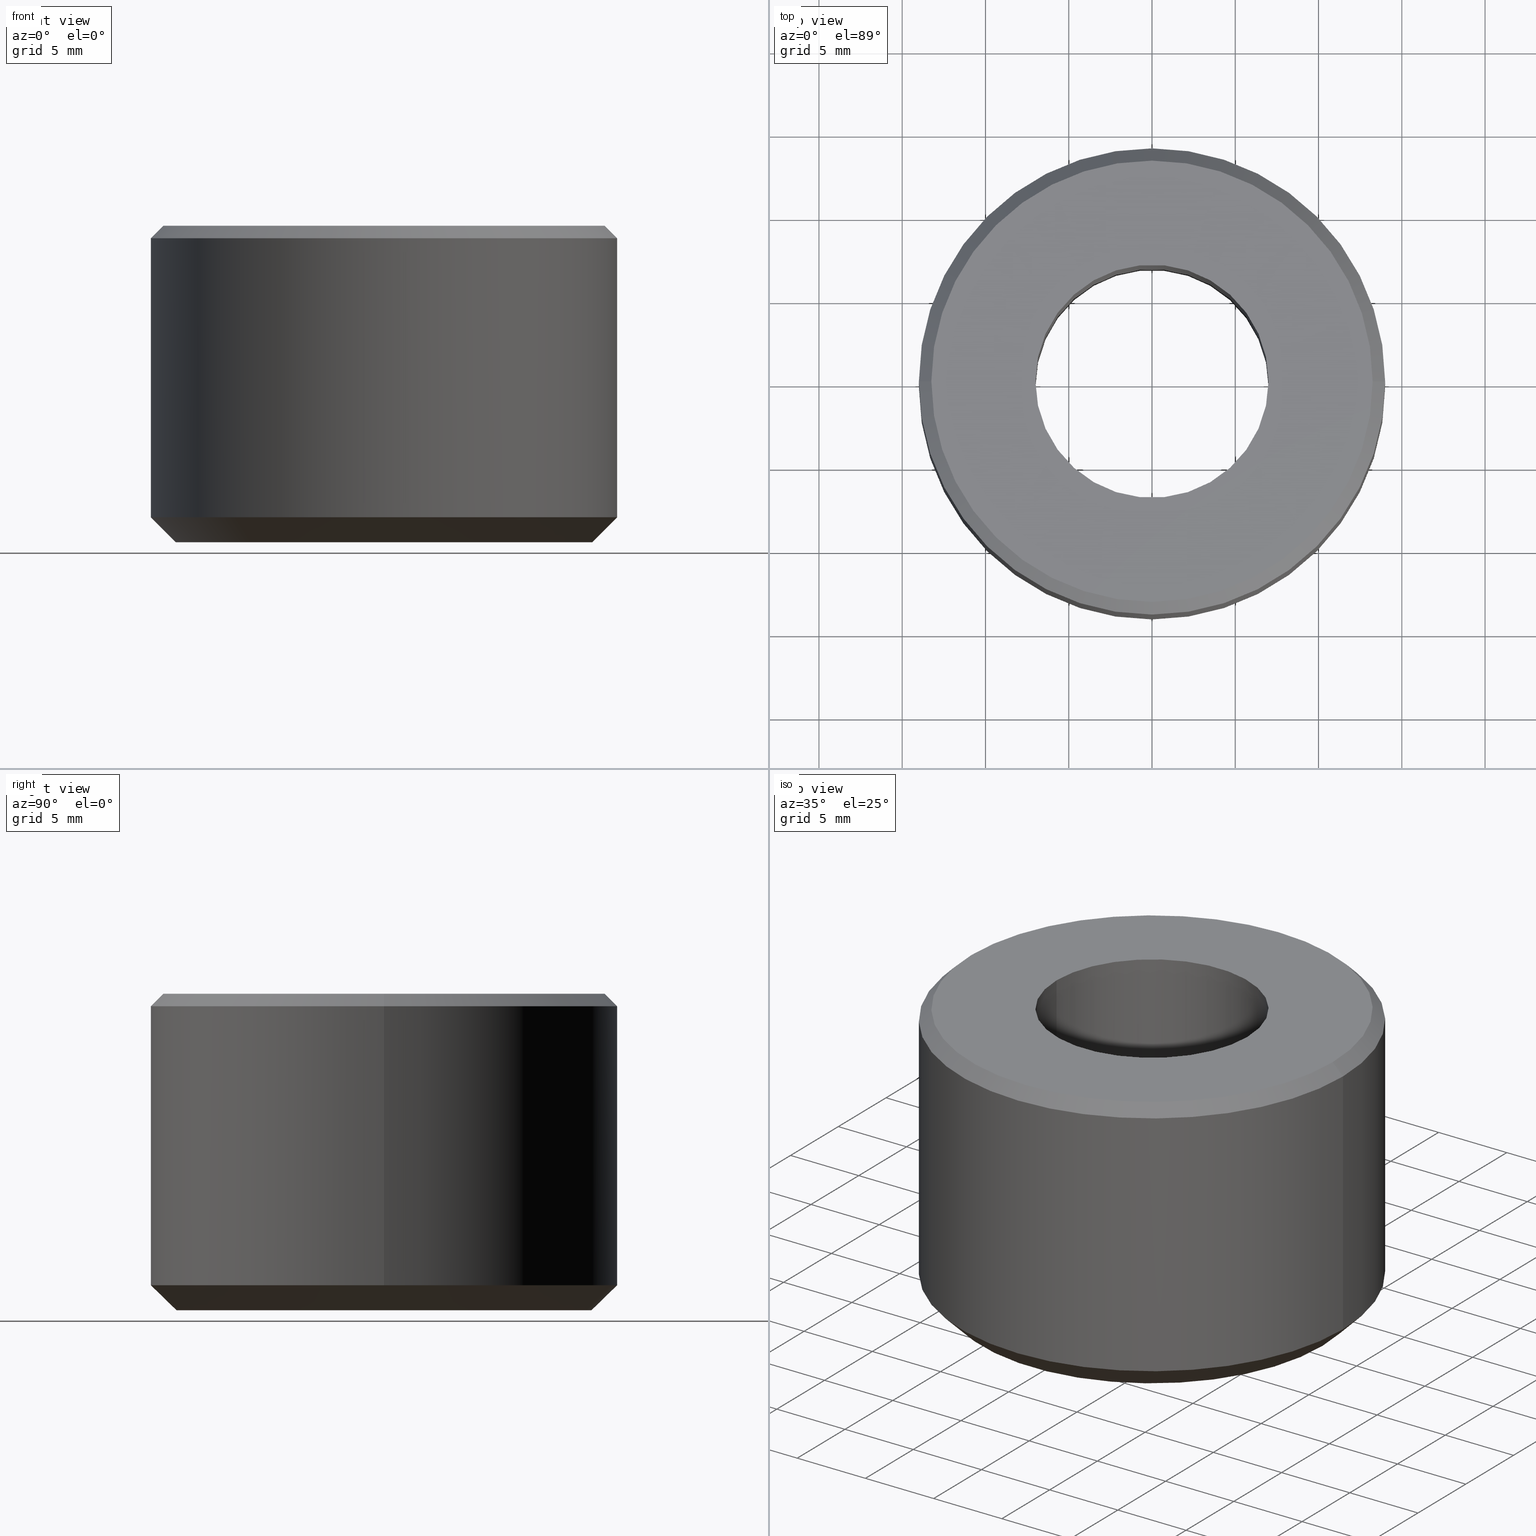
[diagram: canonical four-view strip — front | top / right | iso, engineering-drawing reading convention]
A machine part, canonical four-view strip (front | top / right | iso — engineering-drawing reading convention). The complete STEP part file that produces these views, byte-faithful:
ISO-10303-21;
HEADER;
FILE_DESCRIPTION (( 'STEP AP203' ),
    '1' );
FILE_NAME ('UM ER 20 M.STEP',
    '2019-04-22T09:02:33',
    ( '' ),
    ( '' ),
    'SwSTEP 2.0',
    'SolidWorks 2014',
    '' );
FILE_SCHEMA (( 'CONFIG_CONTROL_DESIGN' ));
ENDSEC;

DATA;
#1 = CONICAL_SURFACE ( 'NONE', #159, 14.00000000000012400, 0.7853981633974853600 ) ;
#2 = CIRCLE ( 'NONE', #233, 7.000000000000000000 ) ;
#3 = DIRECTION ( 'NONE',  ( -0.0000000000000000000, -0.0000000000000000000, 1.000000000000000000 ) ) ;
#4 = EDGE_CURVE ( 'NONE', #203, #327, #95, .T. ) ;
#5 = VECTOR ( 'NONE', #94, 1000.000000000000000 ) ;
#6 = AXIS2_PLACEMENT_3D ( 'NONE', #210, #334, #61 ) ;
#7 = AXIS2_PLACEMENT_3D ( 'NONE', #55, #331, #99 ) ;
#8 = EDGE_LOOP ( 'NONE', ( #77, #211 ) ) ;
#9 = EDGE_CURVE ( 'NONE', #118, #327, #121, .T. ) ;
#10 = CARTESIAN_POINT ( 'NONE',  ( -12.49999999999984400, 1.622657008870240900E-015, 2.220446049250313100E-013 ) ) ;
#11 = PRODUCT_DEFINITION ( 'UNKNOWN', '', #150, #70 ) ;
#12 = EDGE_LOOP ( 'NONE', ( #344, #71 ) ) ;
#13 = DIRECTION ( 'NONE',  ( 1.000000000000000000, 0.0000000000000000000, 0.0000000000000000000 ) ) ;
#14 = APPROVAL_DATE_TIME ( #79, #21 ) ;
#15 = CC_DESIGN_APPROVAL ( #249, ( #150 ) ) ;
#16 = APPLICATION_CONTEXT ( 'configuration controlled 3d designs of mechanical parts and assemblies' ) ;
#17 = DIRECTION ( 'NONE',  ( 1.000000000000000000, 0.0000000000000000000, 0.0000000000000000000 ) ) ;
#18 = ADVANCED_FACE ( 'NONE', ( #126 ), #296, .F. ) ;
#19 = EDGE_CURVE ( 'NONE', #275, #164, #284, .T. ) ;
#20 = ORIENTED_EDGE ( 'NONE', *, *, #4, .T. ) ;
#21 = APPROVAL ( #50, 'UNSPECIFIED' ) ;
#22 = APPROVAL_PERSON_ORGANIZATION ( #85, #21, #23 ) ;
#23 = APPROVAL_ROLE ( '' ) ;
#24 = APPLICATION_PROTOCOL_DEFINITION ( 'international standard', 'config_control_design', 1994, #173 ) ;
#25 = AXIS2_PLACEMENT_3D ( 'NONE', #328, #269, #206 ) ;
#26 = CARTESIAN_POINT ( 'NONE',  ( 12.49999999999984400, 0.0000000000000000000, 2.220446049250313100E-013 ) ) ;
#27 = DIRECTION ( 'NONE',  ( -0.0000000000000000000, -0.0000000000000000000, 1.000000000000000000 ) ) ;
#28 = EDGE_CURVE ( 'NONE', #256, #136, #154, .T. ) ;
#29 = COORDINATED_UNIVERSAL_TIME_OFFSET ( 5, 30, .AHEAD. ) ;
#30 = AXIS2_PLACEMENT_3D ( 'NONE', #208, #185, #274 ) ;
#31 = DIRECTION ( 'NONE',  ( 1.000000000000000000, 0.0000000000000000000, 0.0000000000000000000 ) ) ;
#32 = CIRCLE ( 'NONE', #261, 13.24999999999981700 ) ;
#33 = EDGE_LOOP ( 'NONE', ( #89, #96, #272, #253 ) ) ;
#34 = DIRECTION ( 'NONE',  ( -0.7071067811865737700, 0.0000000000000000000, -0.7071067811865213700 ) ) ;
#35 = PLANE ( 'NONE',  #170 ) ;
#36 = DIRECTION ( 'NONE',  ( -0.0000000000000000000, -0.0000000000000000000, 1.000000000000000000 ) ) ;
#37 = DATE_AND_TIME ( #98, #171 ) ;
#38 = EDGE_LOOP ( 'NONE', ( #195, #68, #115, #20 ) ) ;
#39 = CARTESIAN_POINT ( 'NONE',  ( -6.999999999999999100, 8.572527594031472200E-016, 75.10608502361769500 ) ) ;
#40 = DIRECTION ( 'NONE',  ( -0.0000000000000000000, -0.0000000000000000000, 1.000000000000000000 ) ) ;
#41 = CARTESIAN_POINT ( 'NONE',  ( 14.00000000000012400, 0.0000000000000000000, 1.500000000000500700 ) ) ;
#42 = LINE ( 'NONE', #234, #292 ) ;
#43 = AXIS2_PLACEMENT_3D ( 'NONE', #87, #245, #218 ) ;
#44 = ORIENTED_EDGE ( 'NONE', *, *, #224, .T. ) ;
#45 = AXIS2_PLACEMENT_3D ( 'NONE', #58, #128, #155 ) ;
#46 = PERSON_AND_ORGANIZATION ( #199, #346 ) ;
#47 = ADVANCED_BREP_SHAPE_REPRESENTATION ( 'UM ER 20 M', ( #310, #43 ), #288 ) ;
#48 = EDGE_LOOP ( 'NONE', ( #63, #103, #127, #57 ) ) ;
#49 = CYLINDRICAL_SURFACE ( 'NONE', #237, 14.00000000000012400 ) ;
#50 = APPROVAL_STATUS ( 'not_yet_approved' ) ;
#51 = PERSON_AND_ORGANIZATION ( #199, #346 ) ;
#52 = APPROVAL_ROLE ( '' ) ;
#53 = CIRCLE ( 'NONE', #196, 13.24999999999981700 ) ;
#54 = ORIENTED_EDGE ( 'NONE', *, *, #28, .T. ) ;
#55 = CARTESIAN_POINT ( 'NONE',  ( 0.0000000000000000000, 0.0000000000000000000, 75.10608502361769500 ) ) ;
#56 = COORDINATED_UNIVERSAL_TIME_OFFSET ( 5, 30, .AHEAD. ) ;
#57 = ORIENTED_EDGE ( 'NONE', *, *, #228, .T. ) ;
#58 = CARTESIAN_POINT ( 'NONE',  ( 0.0000000000000000000, 0.0000000000000000000, 18.25000000000032000 ) ) ;
#59 = DIRECTION ( 'NONE',  ( -1.000000000000000000, 0.0000000000000000000, 0.0000000000000000000 ) ) ;
#60 = EDGE_CURVE ( 'NONE', #169, #327, #42, .T. ) ;
#61 = DIRECTION ( 'NONE',  ( 1.000000000000000000, 0.0000000000000000000, 0.0000000000000000000 ) ) ;
#62 = DIRECTION ( 'NONE',  ( 1.000000000000000000, 0.0000000000000000000, 0.0000000000000000000 ) ) ;
#63 = ORIENTED_EDGE ( 'NONE', *, *, #267, .F. ) ;
#64 = DIRECTION ( 'NONE',  ( -0.0000000000000000000, -0.0000000000000000000, 1.000000000000000000 ) ) ;
#65 = CARTESIAN_POINT ( 'NONE',  ( -14.00000000000012400, 1.714505518806309600E-015, 18.25000000000032000 ) ) ;
#66 = CARTESIAN_POINT ( 'NONE',  ( 14.00000000000012400, 0.0000000000000000000, 18.25000000000032000 ) ) ;
#67 = DIRECTION ( 'NONE',  ( 1.000000000000000000, 0.0000000000000000000, 0.0000000000000000000 ) ) ;
#68 = ORIENTED_EDGE ( 'NONE', *, *, #160, .F. ) ;
#69 = CIRCLE ( 'NONE', #231, 12.49999999999984400 ) ;
#70 = DESIGN_CONTEXT ( 'detailed design', #173, 'design' ) ;
#71 = ORIENTED_EDGE ( 'NONE', *, *, #323, .F. ) ;
#72 = PERSON_AND_ORGANIZATION_ROLE ( 'classification_officer' ) ;
#73 = CARTESIAN_POINT ( 'NONE',  ( 0.0000000000000000000, 0.0000000000000000000, 75.10608502361769500 ) ) ;
#74 = PERSON_AND_ORGANIZATION_ROLE ( 'creator' ) ;
#75 = ADVANCED_FACE ( 'NONE', ( #217 ), #1, .T. ) ;
#76 = CARTESIAN_POINT ( 'NONE',  ( 0.0000000000000000000, 0.0000000000000000000, 2.220446049250313100E-013 ) ) ;
#77 = ORIENTED_EDGE ( 'NONE', *, *, #228, .F. ) ;
#78 = CARTESIAN_POINT ( 'NONE',  ( 14.00000000000012400, 1.714505518806309600E-015, 18.25000000000032000 ) ) ;
#79 = DATE_AND_TIME ( #144, #216 ) ;
#80 = AXIS2_PLACEMENT_3D ( 'NONE', #311, #138, #86 ) ;
#81 = EDGE_LOOP ( 'NONE', ( #289, #198, #202, #293 ) ) ;
#82 = CARTESIAN_POINT ( 'NONE',  ( -7.000000000000000900, 8.572527594031474200E-016, 2.220446049250313100E-013 ) ) ;
#83 = VERTEX_POINT ( 'NONE', #10 ) ;
#84 = DIRECTION ( 'NONE',  ( 1.000000000000000000, 0.0000000000000000000, 0.0000000000000000000 ) ) ;
#85 = PERSON_AND_ORGANIZATION ( #199, #346 ) ;
#86 = DIRECTION ( 'NONE',  ( 1.000000000000000000, 0.0000000000000000000, 0.0000000000000000000 ) ) ;
#87 = CARTESIAN_POINT ( 'NONE',  ( 0.0000000000000000000, 0.0000000000000000000, 0.0000000000000000000 ) ) ;
#88 = AXIS2_PLACEMENT_3D ( 'NONE', #76, #27, #227 ) ;
#89 = ORIENTED_EDGE ( 'NONE', *, *, #117, .T. ) ;
#90 = EDGE_CURVE ( 'NONE', #251, #83, #168, .T. ) ;
#91 = PERSON_AND_ORGANIZATION ( #199, #346 ) ;
#92 = EDGE_CURVE ( 'NONE', #333, #203, #324, .T. ) ;
#93 = LINE ( 'NONE', #39, #205 ) ;
#94 = DIRECTION ( 'NONE',  ( -0.7071067811865474600, 8.659560562354931600E-017, 0.7071067811865475700 ) ) ;
#95 = CIRCLE ( 'NONE', #45, 14.00000000000012400 ) ;
#96 = ORIENTED_EDGE ( 'NONE', *, *, #148, .T. ) ;
#97 = LINE ( 'NONE', #26, #230 ) ;
#98 = CALENDAR_DATE ( 2019, 22, 4 ) ;
#99 = DIRECTION ( 'NONE',  ( 1.000000000000000000, 0.0000000000000000000, 0.0000000000000000000 ) ) ;
#100 = DIRECTION ( 'NONE',  ( -0.0000000000000000000, -0.0000000000000000000, 1.000000000000000000 ) ) ;
#101 = CONICAL_SURFACE ( 'NONE', #178, 14.00000000000012400, 0.7853981633974853600 ) ;
#102 = EDGE_CURVE ( 'NONE', #256, #164, #297, .T. ) ;
#103 = ORIENTED_EDGE ( 'NONE', *, *, #28, .F. ) ;
#104 = CARTESIAN_POINT ( 'NONE',  ( 0.0000000000000000000, 0.0000000000000000000, 1.500000000000500900 ) ) ;
#105 = DATE_AND_TIME ( #174, #250 ) ;
#106 = DIRECTION ( 'NONE',  ( 1.000000000000000000, 0.0000000000000000000, 0.0000000000000000000 ) ) ;
#107 = DIRECTION ( 'NONE',  ( -1.000000000000000000, 0.0000000000000000000, -0.0000000000000000000 ) ) ;
#108 = EDGE_LOOP ( 'NONE', ( #177, #316 ) ) ;
#109 = CARTESIAN_POINT ( 'NONE',  ( 0.0000000000000000000, 0.0000000000000000000, 2.220446049250313100E-013 ) ) ;
#110 = MECHANICAL_CONTEXT ( 'NONE', #16, 'mechanical' ) ;
#111 =( NAMED_UNIT ( * ) SI_UNIT ( $, .STERADIAN. ) SOLID_ANGLE_UNIT ( ) );
#112 = PRODUCT ( 'UM ER 20 M', 'UM ER 20 M', '', ( #110 ) ) ;
#113 = APPROVAL_DATE_TIME ( #180, #176 ) ;
#114 = VECTOR ( 'NONE', #212, 1000.000000000000000 ) ;
#115 = ORIENTED_EDGE ( 'NONE', *, *, #92, .T. ) ;
#116 = CIRCLE ( 'NONE', #133, 14.00000000000012400 ) ;
#117 = EDGE_CURVE ( 'NONE', #169, #265, #194, .T. ) ;
#118 = VERTEX_POINT ( 'NONE', #332 ) ;
#119 = APPROVAL_PERSON_ORGANIZATION ( #191, #176, #52 ) ;
#120 = APPROVAL_STATUS ( 'not_yet_approved' ) ;
#121 = LINE ( 'NONE', #78, #343 ) ;
#122 = FACE_BOUND ( 'NONE', #318, .T. ) ;
#123 = ORIENTED_EDGE ( 'NONE', *, *, #60, .T. ) ;
#124 = DIRECTION ( 'NONE',  ( 1.000000000000000000, 0.0000000000000000000, 0.0000000000000000000 ) ) ;
#125 = FACE_OUTER_BOUND ( 'NONE', #157, .T. ) ;
#126 = FACE_OUTER_BOUND ( 'NONE', #48, .T. ) ;
#127 = ORIENTED_EDGE ( 'NONE', *, *, #102, .T. ) ;
#128 = DIRECTION ( 'NONE',  ( -0.0000000000000000000, -0.0000000000000000000, 1.000000000000000000 ) ) ;
#129 = EDGE_LOOP ( 'NONE', ( #300, #143, #229, #172 ) ) ;
#130 = FACE_BOUND ( 'NONE', #8, .T. ) ;
#131 = DIRECTION ( 'NONE',  ( -0.0000000000000000000, -0.0000000000000000000, 1.000000000000000000 ) ) ;
#132 = ORIENTED_EDGE ( 'NONE', *, *, #319, .F. ) ;
#133 = AXIS2_PLACEMENT_3D ( 'NONE', #349, #290, #124 ) ;
#134 = CARTESIAN_POINT ( 'NONE',  ( 0.0000000000000000000, 0.0000000000000000000, 18.25000000000032000 ) ) ;
#135 = CARTESIAN_POINT ( 'NONE',  ( -14.00000000000012400, 1.714505518806309600E-015, 75.10608502361769500 ) ) ;
#136 = VERTEX_POINT ( 'NONE', #82 ) ;
#137 = SECURITY_CLASSIFICATION ( '', '', #226 ) ;
#138 = DIRECTION ( 'NONE',  ( -0.0000000000000000000, -0.0000000000000000000, 1.000000000000000000 ) ) ;
#139 = SHAPE_DEFINITION_REPRESENTATION ( #204, #47 ) ;
#140 = CARTESIAN_POINT ( 'NONE',  ( 0.0000000000000000000, 13.24999999999981700, 19.00000000000057200 ) ) ;
#141 = FACE_OUTER_BOUND ( 'NONE', #12, .T. ) ;
#142 = CC_DESIGN_APPROVAL ( #176, ( #11 ) ) ;
#143 = ORIENTED_EDGE ( 'NONE', *, *, #267, .T. ) ;
#144 = CALENDAR_DATE ( 2019, 22, 4 ) ;
#145 = VECTOR ( 'NONE', #64, 1000.000000000000000 ) ;
#146 = PERSON_AND_ORGANIZATION_ROLE ( 'creator' ) ;
#147 = ADVANCED_FACE ( 'NONE', ( #281 ), #101, .T. ) ;
#148 = EDGE_CURVE ( 'NONE', #265, #203, #270, .T. ) ;
#149 = CARTESIAN_POINT ( 'NONE',  ( -12.49999999999984400, 1.530808498934172600E-015, 2.220446049250313100E-013 ) ) ;
#150 = PRODUCT_DEFINITION_FORMATION_WITH_SPECIFIED_SOURCE ( 'ANY', '', #112, .NOT_KNOWN. ) ;
#151 = EDGE_LOOP ( 'NONE', ( #132, #285, #238, #271 ) ) ;
#152 = FACE_OUTER_BOUND ( 'NONE', #342, .T. ) ;
#153 = DATE_AND_TIME ( #225, #305 ) ;
#154 = CIRCLE ( 'NONE', #30, 7.000000000000000000 ) ;
#155 = DIRECTION ( 'NONE',  ( 1.000000000000000000, 0.0000000000000000000, 0.0000000000000000000 ) ) ;
#156 = DIRECTION ( 'NONE',  ( 0.0000000000000000000, 0.0000000000000000000, -1.000000000000000000 ) ) ;
#157 = EDGE_LOOP ( 'NONE', ( #182, #337, #123, #223 ) ) ;
#158 = PRODUCT_RELATED_PRODUCT_CATEGORY ( 'detail', '', ( #112 ) ) ;
#159 = AXIS2_PLACEMENT_3D ( 'NONE', #134, #240, #59 ) ;
#160 = EDGE_CURVE ( 'NONE', #333, #118, #32, .T. ) ;
#161 = ADVANCED_FACE ( 'NONE', ( #130, #315 ), #35, .F. ) ;
#162 = PERSON_AND_ORGANIZATION ( #199, #346 ) ;
#163 = DIRECTION ( 'NONE',  ( 0.0000000000000000000, -0.0000000000000000000, 1.000000000000000000 ) ) ;
#164 = VERTEX_POINT ( 'NONE', #193 ) ;
#165 =( NAMED_UNIT ( * ) PLANE_ANGLE_UNIT ( ) SI_UNIT ( $, .RADIAN. ) );
#166 = AXIS2_PLACEMENT_3D ( 'NONE', #104, #100, #31 ) ;
#167 = CARTESIAN_POINT ( 'NONE',  ( 0.0000000000000000000, 0.0000000000000000000, 2.220446049250313100E-013 ) ) ;
#168 = CIRCLE ( 'NONE', #6, 12.49999999999984400 ) ;
#169 = VERTEX_POINT ( 'NONE', #41 ) ;
#170 = AXIS2_PLACEMENT_3D ( 'NONE', #140, #246, #107 ) ;
#171 = LOCAL_TIME ( 14, 32, 33.00000000000000000, #241 ) ;
#172 = ORIENTED_EDGE ( 'NONE', *, *, #102, .F. ) ;
#173 = APPLICATION_CONTEXT ( 'configuration controlled 3d designs of mechanical parts and assemblies' ) ;
#174 = CALENDAR_DATE ( 2019, 22, 4 ) ;
#175 = CC_DESIGN_DATE_AND_TIME_ASSIGNMENT ( #153, #347, ( #137 ) ) ;
#176 = APPROVAL ( #120, 'UNSPECIFIED' ) ;
#177 = ORIENTED_EDGE ( 'NONE', *, *, #160, .T. ) ;
#178 = AXIS2_PLACEMENT_3D ( 'NONE', #301, #156, #183 ) ;
#179 = ORIENTED_EDGE ( 'NONE', *, *, #117, .F. ) ;
#180 = DATE_AND_TIME ( #259, #340 ) ;
#181 = LINE ( 'NONE', #149, #5 ) ;
#182 = ORIENTED_EDGE ( 'NONE', *, *, #148, .F. ) ;
#183 = DIRECTION ( 'NONE',  ( -1.000000000000000000, 0.0000000000000000000, 0.0000000000000000000 ) ) ;
#184 = CARTESIAN_POINT ( 'NONE',  ( -14.00000000000012400, 0.0000000000000000000, 18.25000000000032000 ) ) ;
#185 = DIRECTION ( 'NONE',  ( -0.0000000000000000000, -0.0000000000000000000, 1.000000000000000000 ) ) ;
#186 = DIRECTION ( 'NONE',  ( -0.0000000000000000000, -0.0000000000000000000, 1.000000000000000000 ) ) ;
#187 = ORIENTED_EDGE ( 'NONE', *, *, #319, .T. ) ;
#188 = CARTESIAN_POINT ( 'NONE',  ( 0.0000000000000000000, 0.0000000000000000000, 1.500000000000500900 ) ) ;
#189 = CARTESIAN_POINT ( 'NONE',  ( 12.49999999999984400, 0.0000000000000000000, 2.220446049250313100E-013 ) ) ;
#190 = CARTESIAN_POINT ( 'NONE',  ( -13.24999999999981700, 0.0000000000000000000, 19.00000000000057200 ) ) ;
#191 = PERSON_AND_ORGANIZATION ( #199, #346 ) ;
#192 = DIRECTION ( 'NONE',  ( -0.0000000000000000000, -0.0000000000000000000, 1.000000000000000000 ) ) ;
#193 = CARTESIAN_POINT ( 'NONE',  ( 6.999999999999997300, 0.0000000000000000000, 19.00000000000057200 ) ) ;
#194 = CIRCLE ( 'NONE', #166, 14.00000000000012400 ) ;
#195 = ORIENTED_EDGE ( 'NONE', *, *, #9, .F. ) ;
#196 = AXIS2_PLACEMENT_3D ( 'NONE', #214, #40, #13 ) ;
#197 = CC_DESIGN_SECURITY_CLASSIFICATION ( #137, ( #150 ) ) ;
#198 = ORIENTED_EDGE ( 'NONE', *, *, #9, .T. ) ;
#199 = PERSON ( 'UNSPECIFIED', 'UNSPECIFIED', 'UNSPECIFIED', ('UNSPECIFIED'), ('UNSPECIFIED'), ('UNSPECIFIED') ) ;
#200 = CC_DESIGN_PERSON_AND_ORGANIZATION_ASSIGNMENT ( #51, #146, ( #11 ) ) ;
#201 = APPROVAL_STATUS ( 'not_yet_approved' ) ;
#202 = ORIENTED_EDGE ( 'NONE', *, *, #286, .T. ) ;
#203 = VERTEX_POINT ( 'NONE', #65 ) ;
#204 = PRODUCT_DEFINITION_SHAPE ( 'NONE', 'NONE',  #11 ) ;
#205 = VECTOR ( 'NONE', #36, 1000.000000000000000 ) ;
#206 = DIRECTION ( 'NONE',  ( 1.000000000000000000, 0.0000000000000000000, 0.0000000000000000000 ) ) ;
#207 = CIRCLE ( 'NONE', #280, 14.00000000000012400 ) ;
#208 = CARTESIAN_POINT ( 'NONE',  ( 0.0000000000000000000, 0.0000000000000000000, 2.220446049250313100E-013 ) ) ;
#209 = EDGE_CURVE ( 'NONE', #118, #333, #53, .T. ) ;
#210 = CARTESIAN_POINT ( 'NONE',  ( 0.0000000000000000000, 0.0000000000000000000, 2.220446049250313100E-013 ) ) ;
#211 = ORIENTED_EDGE ( 'NONE', *, *, #19, .F. ) ;
#212 = DIRECTION ( 'NONE',  ( -0.0000000000000000000, -0.0000000000000000000, 1.000000000000000000 ) ) ;
#213 = DIRECTION ( 'NONE',  ( -0.0000000000000000000, -0.0000000000000000000, 1.000000000000000000 ) ) ;
#214 = CARTESIAN_POINT ( 'NONE',  ( 0.0000000000000000000, 0.0000000000000000000, 19.00000000000057200 ) ) ;
#215 = CARTESIAN_POINT ( 'NONE',  ( 7.000000000000000000, 0.0000000000000000000, 2.220446049250313100E-013 ) ) ;
#216 = LOCAL_TIME ( 14, 32, 33.00000000000000000, #294 ) ;
#217 = FACE_OUTER_BOUND ( 'NONE', #38, .T. ) ;
#218 = DIRECTION ( 'NONE',  ( 1.000000000000000000, 0.0000000000000000000, 0.0000000000000000000 ) ) ;
#219 = CARTESIAN_POINT ( 'NONE',  ( 0.0000000000000000000, 0.0000000000000000000, 19.00000000000057200 ) ) ;
#220 = CC_DESIGN_DATE_AND_TIME_ASSIGNMENT ( #105, #348, ( #11 ) ) ;
#221 = CYLINDRICAL_SURFACE ( 'NONE', #80, 14.00000000000012400 ) ;
#222 = ADVANCED_FACE ( 'NONE', ( #141, #122 ), #338, .F. ) ;
#223 = ORIENTED_EDGE ( 'NONE', *, *, #4, .F. ) ;
#224 = EDGE_CURVE ( 'NONE', #136, #256, #2, .T. ) ;
#225 = CALENDAR_DATE ( 2019, 22, 4 ) ;
#226 = SECURITY_CLASSIFICATION_LEVEL ( 'unclassified' ) ;
#227 = DIRECTION ( 'NONE',  ( 1.000000000000000000, 0.0000000000000000000, 0.0000000000000000000 ) ) ;
#228 = EDGE_CURVE ( 'NONE', #164, #275, #329, .T. ) ;
#229 = ORIENTED_EDGE ( 'NONE', *, *, #19, .T. ) ;
#230 = VECTOR ( 'NONE', #325, 1000.000000000000000 ) ;
#231 = AXIS2_PLACEMENT_3D ( 'NONE', #248, #277, #339 ) ;
#232 = PERSON_AND_ORGANIZATION ( #199, #346 ) ;
#233 = AXIS2_PLACEMENT_3D ( 'NONE', #167, #309, #306 ) ;
#234 = CARTESIAN_POINT ( 'NONE',  ( 14.00000000000012400, 0.0000000000000000000, 75.10608502361769500 ) ) ;
#235 = CLOSED_SHELL ( 'NONE', ( #147, #322, #302, #243, #18, #222, #254, #247, #75, #161 ) ) ;
#236 = AXIS2_PLACEMENT_3D ( 'NONE', #313, #163, #67 ) ;
#237 = AXIS2_PLACEMENT_3D ( 'NONE', #73, #3, #263 ) ;
#238 = ORIENTED_EDGE ( 'NONE', *, *, #304, .T. ) ;
#239 = FACE_OUTER_BOUND ( 'NONE', #129, .T. ) ;
#240 = DIRECTION ( 'NONE',  ( 0.0000000000000000000, 0.0000000000000000000, -1.000000000000000000 ) ) ;
#241 = COORDINATED_UNIVERSAL_TIME_OFFSET ( 5, 30, .AHEAD. ) ;
#242 = DIRECTION ( 'NONE',  ( -0.0000000000000000000, -0.0000000000000000000, 1.000000000000000000 ) ) ;
#243 = ADVANCED_FACE ( 'NONE', ( #239 ), #291, .F. ) ;
#244 = CARTESIAN_POINT ( 'NONE',  ( 0.0000000000000000000, 0.0000000000000000000, 19.00000000000057200 ) ) ;
#245 = DIRECTION ( 'NONE',  ( 0.0000000000000000000, 0.0000000000000000000, 1.000000000000000000 ) ) ;
#246 = DIRECTION ( 'NONE',  ( 0.0000000000000000000, 0.0000000000000000000, -1.000000000000000000 ) ) ;
#247 = ADVANCED_FACE ( 'NONE', ( #125 ), #221, .T. ) ;
#248 = CARTESIAN_POINT ( 'NONE',  ( 0.0000000000000000000, 0.0000000000000000000, 2.220446049250313100E-013 ) ) ;
#249 = APPROVAL ( #201, 'UNSPECIFIED' ) ;
#250 = LOCAL_TIME ( 14, 32, 33.00000000000000000, #330 ) ;
#251 = VERTEX_POINT ( 'NONE', #189 ) ;
#252 = CC_DESIGN_APPROVAL ( #21, ( #137 ) ) ;
#253 = ORIENTED_EDGE ( 'NONE', *, *, #60, .F. ) ;
#254 = ADVANCED_FACE ( 'NONE', ( #335 ), #255, .T. ) ;
#255 = CONICAL_SURFACE ( 'NONE', #266, 12.49999999999984400, 0.7853981633974482800 ) ;
#256 = VERTEX_POINT ( 'NONE', #215 ) ;
#257 = CC_DESIGN_PERSON_AND_ORGANIZATION_ASSIGNMENT ( #268, #287, ( #112 ) ) ;
#258 = EDGE_CURVE ( 'NONE', #265, #169, #207, .T. ) ;
#259 = CALENDAR_DATE ( 2019, 22, 4 ) ;
#260 = PERSON_AND_ORGANIZATION_ROLE ( 'design_supplier' ) ;
#261 = AXIS2_PLACEMENT_3D ( 'NONE', #219, #192, #17 ) ;
#262 = CC_DESIGN_PERSON_AND_ORGANIZATION_ASSIGNMENT ( #162, #260, ( #150 ) ) ;
#263 = DIRECTION ( 'NONE',  ( 1.000000000000000000, 0.0000000000000000000, 0.0000000000000000000 ) ) ;
#264 = AXIS2_PLACEMENT_3D ( 'NONE', #244, #186, #303 ) ;
#265 = VERTEX_POINT ( 'NONE', #278 ) ;
#266 = AXIS2_PLACEMENT_3D ( 'NONE', #109, #213, #62 ) ;
#267 = EDGE_CURVE ( 'NONE', #136, #275, #93, .T. ) ;
#268 = PERSON_AND_ORGANIZATION ( #199, #346 ) ;
#269 = DIRECTION ( 'NONE',  ( -0.0000000000000000000, -0.0000000000000000000, 1.000000000000000000 ) ) ;
#270 = LINE ( 'NONE', #135, #145 ) ;
#271 = ORIENTED_EDGE ( 'NONE', *, *, #258, .F. ) ;
#272 = ORIENTED_EDGE ( 'NONE', *, *, #286, .F. ) ;
#273 = FACE_OUTER_BOUND ( 'NONE', #33, .T. ) ;
#274 = DIRECTION ( 'NONE',  ( 1.000000000000000000, 0.0000000000000000000, 0.0000000000000000000 ) ) ;
#275 = VERTEX_POINT ( 'NONE', #321 ) ;
#276 = CARTESIAN_POINT ( 'NONE',  ( 0.0000000000000000000, 0.0000000000000000000, 75.10608502361769500 ) ) ;
#277 = DIRECTION ( 'NONE',  ( -0.0000000000000000000, -0.0000000000000000000, 1.000000000000000000 ) ) ;
#278 = CARTESIAN_POINT ( 'NONE',  ( -14.00000000000012400, 1.714505518806309600E-015, 1.500000000000500700 ) ) ;
#279 =( LENGTH_UNIT ( ) NAMED_UNIT ( * ) SI_UNIT ( .MILLI., .METRE. ) );
#280 = AXIS2_PLACEMENT_3D ( 'NONE', #188, #336, #84 ) ;
#281 = FACE_OUTER_BOUND ( 'NONE', #81, .T. ) ;
#282 = ORIENTED_EDGE ( 'NONE', *, *, #90, .T. ) ;
#283 = AXIS2_PLACEMENT_3D ( 'NONE', #276, #242, #106 ) ;
#284 = CIRCLE ( 'NONE', #25, 6.999999999999997300 ) ;
#285 = ORIENTED_EDGE ( 'NONE', *, *, #323, .T. ) ;
#286 = EDGE_CURVE ( 'NONE', #327, #203, #116, .T. ) ;
#287 = PERSON_AND_ORGANIZATION_ROLE ( 'design_owner' ) ;
#288 =( GEOMETRIC_REPRESENTATION_CONTEXT ( 3 ) GLOBAL_UNCERTAINTY_ASSIGNED_CONTEXT ( ( #314 ) ) GLOBAL_UNIT_ASSIGNED_CONTEXT ( ( #279, #165, #111 ) ) REPRESENTATION_CONTEXT ( 'NONE', 'WORKASPACE' ) );
#289 = ORIENTED_EDGE ( 'NONE', *, *, #209, .F. ) ;
#290 = DIRECTION ( 'NONE',  ( -0.0000000000000000000, -0.0000000000000000000, 1.000000000000000000 ) ) ;
#291 = CYLINDRICAL_SURFACE ( 'NONE', #283, 6.999999999999999100 ) ;
#292 = VECTOR ( 'NONE', #131, 1000.000000000000000 ) ;
#293 = ORIENTED_EDGE ( 'NONE', *, *, #92, .F. ) ;
#294 = COORDINATED_UNIVERSAL_TIME_OFFSET ( 5, 30, .AHEAD. ) ;
#295 = DIRECTION ( 'NONE',  ( 0.7071067811865737700, 8.659560562355254600E-017, -0.7071067811865213700 ) ) ;
#296 = CYLINDRICAL_SURFACE ( 'NONE', #7, 6.999999999999999100 ) ;
#297 = LINE ( 'NONE', #299, #114 ) ;
#298 = CC_DESIGN_PERSON_AND_ORGANIZATION_ASSIGNMENT ( #232, #74, ( #150 ) ) ;
#299 = CARTESIAN_POINT ( 'NONE',  ( 6.999999999999999100, 0.0000000000000000000, 75.10608502361769500 ) ) ;
#300 = ORIENTED_EDGE ( 'NONE', *, *, #224, .F. ) ;
#301 = CARTESIAN_POINT ( 'NONE',  ( 0.0000000000000000000, 0.0000000000000000000, 18.25000000000032000 ) ) ;
#302 = ADVANCED_FACE ( 'NONE', ( #152 ), #312, .T. ) ;
#303 = DIRECTION ( 'NONE',  ( 1.000000000000000000, 0.0000000000000000000, 0.0000000000000000000 ) ) ;
#304 = EDGE_CURVE ( 'NONE', #251, #169, #97, .T. ) ;
#305 = LOCAL_TIME ( 14, 32, 33.00000000000000000, #29 ) ;
#306 = DIRECTION ( 'NONE',  ( 1.000000000000000000, 0.0000000000000000000, 0.0000000000000000000 ) ) ;
#307 = ORIENTED_EDGE ( 'NONE', *, *, #304, .F. ) ;
#308 = APPLICATION_PROTOCOL_DEFINITION ( 'international standard', 'config_control_design', 1994, #16 ) ;
#309 = DIRECTION ( 'NONE',  ( -0.0000000000000000000, -0.0000000000000000000, 1.000000000000000000 ) ) ;
#310 = MANIFOLD_SOLID_BREP ( 'Revolve1', #235 ) ;
#311 = CARTESIAN_POINT ( 'NONE',  ( 0.0000000000000000000, 0.0000000000000000000, 75.10608502361769500 ) ) ;
#312 = CONICAL_SURFACE ( 'NONE', #88, 12.49999999999984400, 0.7853981633974482800 ) ;
#313 = CARTESIAN_POINT ( 'NONE',  ( 0.0000000000000000000, 12.49999999999984400, 2.220446049250313100E-013 ) ) ;
#314 = UNCERTAINTY_MEASURE_WITH_UNIT (LENGTH_MEASURE( 1.000000000000000100E-005 ), #279, 'distance_accuracy_value', 'NONE');
#315 = FACE_OUTER_BOUND ( 'NONE', #108, .T. ) ;
#316 = ORIENTED_EDGE ( 'NONE', *, *, #209, .T. ) ;
#317 = APPROVAL_DATE_TIME ( #37, #249 ) ;
#318 = EDGE_LOOP ( 'NONE', ( #54, #44 ) ) ;
#319 = EDGE_CURVE ( 'NONE', #83, #265, #181, .T. ) ;
#320 = APPROVAL_ROLE ( '' ) ;
#321 = CARTESIAN_POINT ( 'NONE',  ( -6.999999999999997300, 8.572527594031471200E-016, 19.00000000000057200 ) ) ;
#322 = ADVANCED_FACE ( 'NONE', ( #273 ), #49, .T. ) ;
#323 = EDGE_CURVE ( 'NONE', #83, #251, #69, .T. ) ;
#324 = LINE ( 'NONE', #184, #341 ) ;
#325 = DIRECTION ( 'NONE',  ( 0.7071067811865474600, 0.0000000000000000000, 0.7071067811865475700 ) ) ;
#326 = APPROVAL_PERSON_ORGANIZATION ( #46, #249, #320 ) ;
#327 = VERTEX_POINT ( 'NONE', #66 ) ;
#328 = CARTESIAN_POINT ( 'NONE',  ( 0.0000000000000000000, 0.0000000000000000000, 19.00000000000057200 ) ) ;
#329 = CIRCLE ( 'NONE', #264, 6.999999999999997300 ) ;
#330 = COORDINATED_UNIVERSAL_TIME_OFFSET ( 5, 30, .AHEAD. ) ;
#331 = DIRECTION ( 'NONE',  ( -0.0000000000000000000, -0.0000000000000000000, 1.000000000000000000 ) ) ;
#332 = CARTESIAN_POINT ( 'NONE',  ( 13.24999999999981700, 1.668581263838265000E-015, 19.00000000000057200 ) ) ;
#333 = VERTEX_POINT ( 'NONE', #190 ) ;
#334 = DIRECTION ( 'NONE',  ( -0.0000000000000000000, -0.0000000000000000000, 1.000000000000000000 ) ) ;
#335 = FACE_OUTER_BOUND ( 'NONE', #151, .T. ) ;
#336 = DIRECTION ( 'NONE',  ( -0.0000000000000000000, -0.0000000000000000000, 1.000000000000000000 ) ) ;
#337 = ORIENTED_EDGE ( 'NONE', *, *, #258, .T. ) ;
#338 = PLANE ( 'NONE',  #236 ) ;
#339 = DIRECTION ( 'NONE',  ( 1.000000000000000000, 0.0000000000000000000, 0.0000000000000000000 ) ) ;
#340 = LOCAL_TIME ( 14, 32, 33.00000000000000000, #56 ) ;
#341 = VECTOR ( 'NONE', #34, 1000.000000000000100 ) ;
#342 = EDGE_LOOP ( 'NONE', ( #282, #187, #179, #307 ) ) ;
#343 = VECTOR ( 'NONE', #295, 1000.000000000000100 ) ;
#344 = ORIENTED_EDGE ( 'NONE', *, *, #90, .F. ) ;
#345 = CC_DESIGN_PERSON_AND_ORGANIZATION_ASSIGNMENT ( #91, #72, ( #137 ) ) ;
#346 = ORGANIZATION ( 'UNSPECIFIED', 'UNSPECIFIED', '' ) ;
#347 = DATE_TIME_ROLE ( 'classification_date' ) ;
#348 = DATE_TIME_ROLE ( 'creation_date' ) ;
#349 = CARTESIAN_POINT ( 'NONE',  ( 0.0000000000000000000, 0.0000000000000000000, 18.25000000000032000 ) ) ;
ENDSEC;
END-ISO-10303-21;
